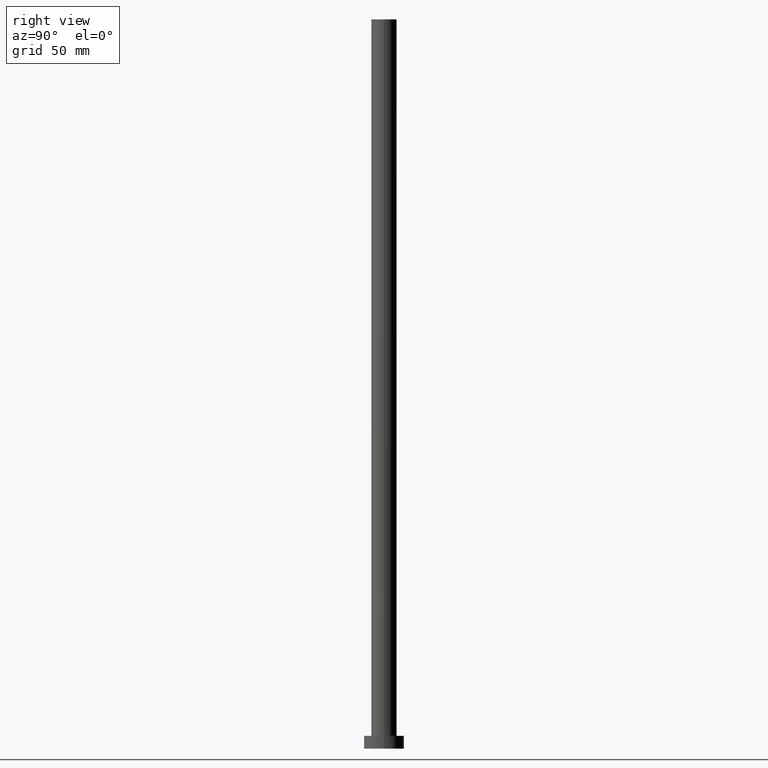
[diagram: clean part render]
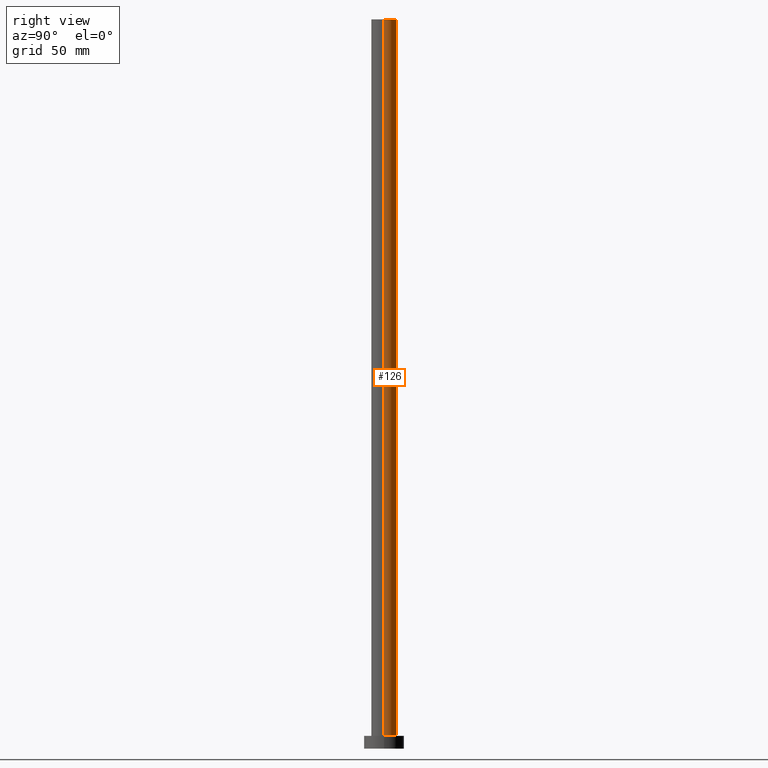
[diagram: same view with one face highlighted and labeled with its STEP entity id]
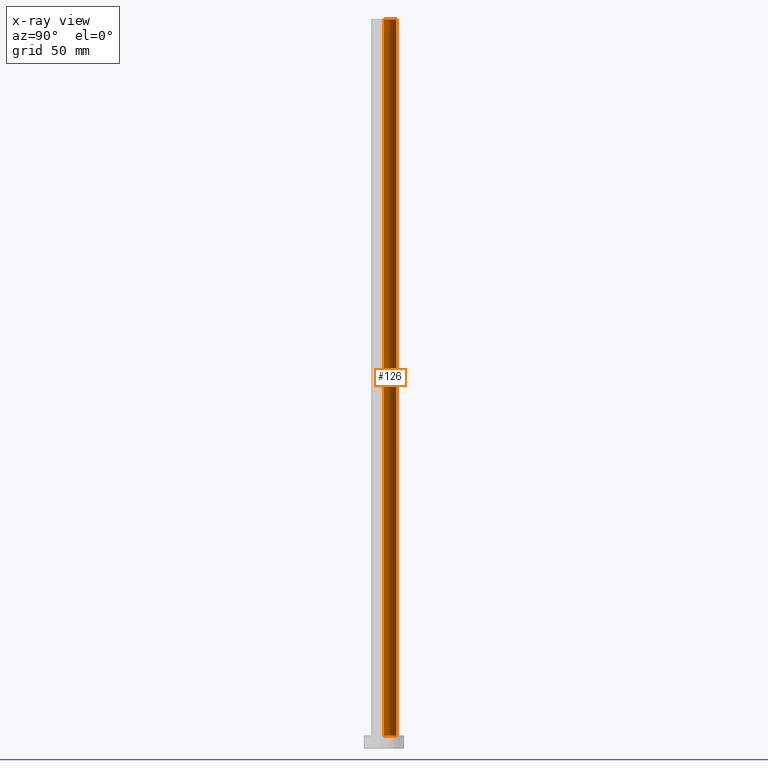
[diagram: x-ray of the same camera — body ghosted, the highlighted face saturated]
A machine part, right view. The second image highlights one B-rep face of the part: STEP entity #126.
The next image is the same camera in x-ray: the body ghosted, the highlighted face saturated — about 0% of this face is hidden behind the body in this view.
In plain terms, the highlighted cylindrical surface (edge-blend (fillet) strip) has radius 7 mm, axis along (-0, -0, -1).
Its self-contained STEP definition (entity closure, byte-faithful):
#2 = LINE ( 'NONE', #38, #207 ) ;
#3 = EDGE_CURVE ( 'NONE', #21, #40, #2, .T. ) ;
#5 = CARTESIAN_POINT ( 'NONE',  ( 7.000000000000000888, 8.572527594031474176E-16, 400.0000000000000000 ) ) ;
#8 = CARTESIAN_POINT ( 'NONE',  ( 0.000000000000000000, 0.000000000000000000, 7.000000000000000000 ) ) ;
#13 = CIRCLE ( 'NONE', #92, 7.000000000000000888 ) ;
#21 = VERTEX_POINT ( 'NONE', #5 ) ;
#28 = DIRECTION ( 'NONE',  ( -1.000000000000000000, 0.000000000000000000, 0.000000000000000000 ) ) ;
#31 = CARTESIAN_POINT ( 'NONE',  ( 0.000000000000000000, 0.000000000000000000, 400.0000000000000000 ) ) ;
#38 = CARTESIAN_POINT ( 'NONE',  ( 7.000000000000000888, 8.572527594031474176E-16, 400.0000000000000000 ) ) ;
#40 = VERTEX_POINT ( 'NONE', #62 ) ;
#44 = CARTESIAN_POINT ( 'NONE',  ( -7.000000000000000888, 0.000000000000000000, 400.0000000000000000 ) ) ;
#53 = AXIS2_PLACEMENT_3D ( 'NONE', #247, #208, #28 ) ;
#60 = ORIENTED_EDGE ( 'NONE', *, *, #204, .F. ) ;
#62 = CARTESIAN_POINT ( 'NONE',  ( 7.000000000000000888, 8.572527594031474176E-16, 7.000000000000000000 ) ) ;
#71 = CIRCLE ( 'NONE', #157, 7.000000000000000888 ) ;
#81 = ORIENTED_EDGE ( 'NONE', *, *, #129, .T. ) ;
#86 = CARTESIAN_POINT ( 'NONE',  ( -7.000000000000000888, 0.000000000000000000, 400.0000000000000000 ) ) ;
#92 = AXIS2_PLACEMENT_3D ( 'NONE', #8, #245, #228 ) ;
#104 = VERTEX_POINT ( 'NONE', #86 ) ;
#122 = DIRECTION ( 'NONE',  ( -0.000000000000000000, -0.000000000000000000, -1.000000000000000000 ) ) ;
#126 = ADVANCED_FACE ( 'NONE', ( #167 ), #152, .T. ) ;
#129 = EDGE_CURVE ( 'NONE', #40, #197, #13, .T. ) ;
#146 = ORIENTED_EDGE ( 'NONE', *, *, #3, .T. ) ;
#152 = CYLINDRICAL_SURFACE ( 'NONE', #53, 7.000000000000000888 ) ;
#157 = AXIS2_PLACEMENT_3D ( 'NONE', #31, #185, #225 ) ;
#167 = FACE_OUTER_BOUND ( 'NONE', #236, .T. ) ;
#170 = CARTESIAN_POINT ( 'NONE',  ( -7.000000000000000888, 0.000000000000000000, 7.000000000000000000 ) ) ;
#177 = LINE ( 'NONE', #44, #190 ) ;
#183 = ORIENTED_EDGE ( 'NONE', *, *, #246, .F. ) ;
#185 = DIRECTION ( 'NONE',  ( 0.000000000000000000, 0.000000000000000000, 1.000000000000000000 ) ) ;
#190 = VECTOR ( 'NONE', #255, 1000.000000000000000 ) ;
#197 = VERTEX_POINT ( 'NONE', #170 ) ;
#204 = EDGE_CURVE ( 'NONE', #21, #104, #71, .T. ) ;
#207 = VECTOR ( 'NONE', #122, 1000.000000000000000 ) ;
#208 = DIRECTION ( 'NONE',  ( -0.000000000000000000, -0.000000000000000000, -1.000000000000000000 ) ) ;
#225 = DIRECTION ( 'NONE',  ( 1.000000000000000000, 0.000000000000000000, 0.000000000000000000 ) ) ;
#228 = DIRECTION ( 'NONE',  ( 1.000000000000000000, 0.000000000000000000, 0.000000000000000000 ) ) ;
#236 = EDGE_LOOP ( 'NONE', ( #60, #146, #81, #183 ) ) ;
#245 = DIRECTION ( 'NONE',  ( 0.000000000000000000, 0.000000000000000000, 1.000000000000000000 ) ) ;
#246 = EDGE_CURVE ( 'NONE', #104, #197, #177, .T. ) ;
#247 = CARTESIAN_POINT ( 'NONE',  ( 0.000000000000000000, 0.000000000000000000, 400.0000000000000000 ) ) ;
#255 = DIRECTION ( 'NONE',  ( -0.000000000000000000, -0.000000000000000000, -1.000000000000000000 ) ) ;